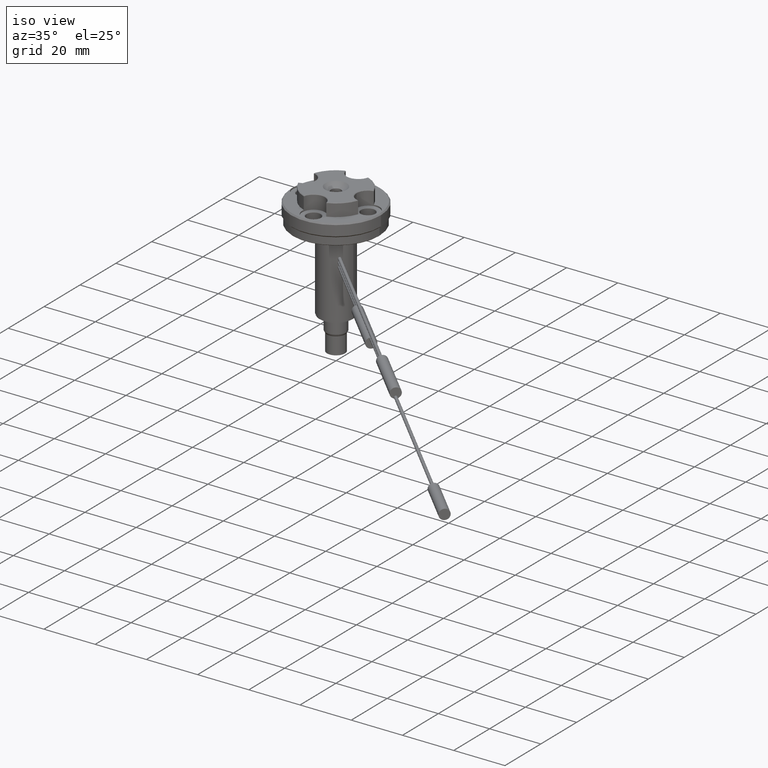
[diagram: clean part render]
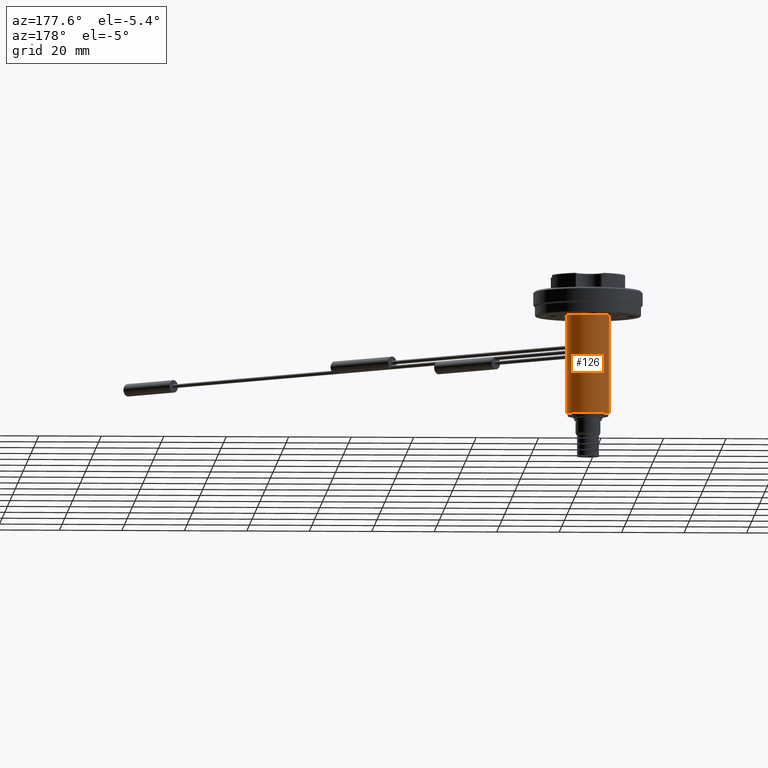
[diagram: tour spotlight — one face highlighted and labeled with its STEP entity id]
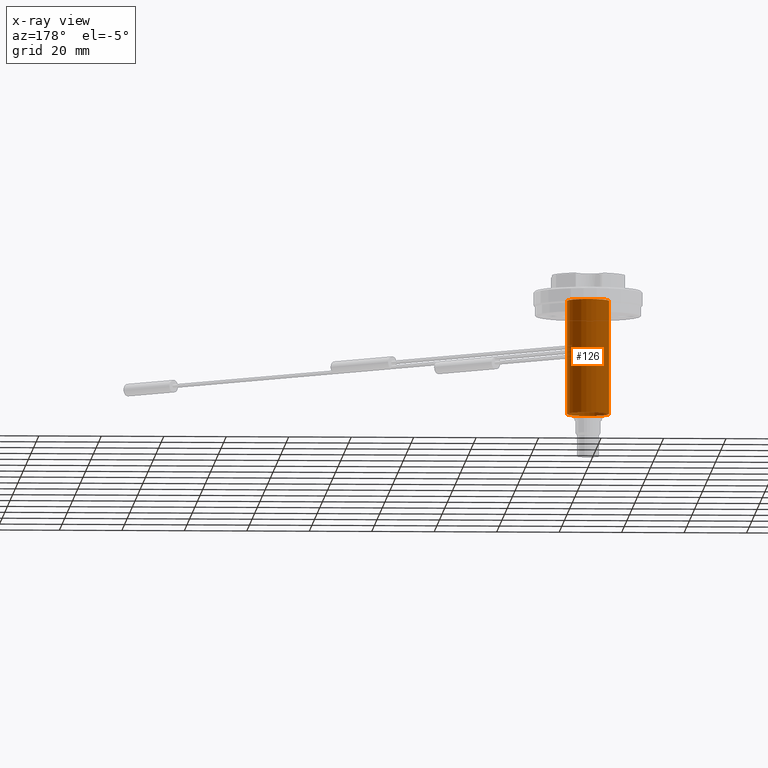
[diagram: x-ray of the same camera — body ghosted, this tour face saturated]
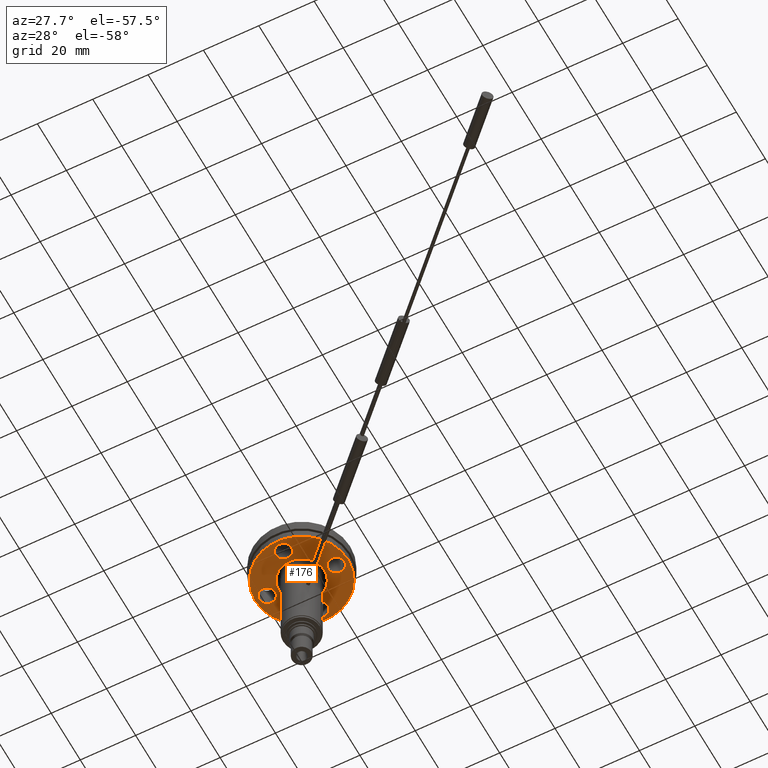
[diagram: tour spotlight — one face highlighted and labeled with its STEP entity id]
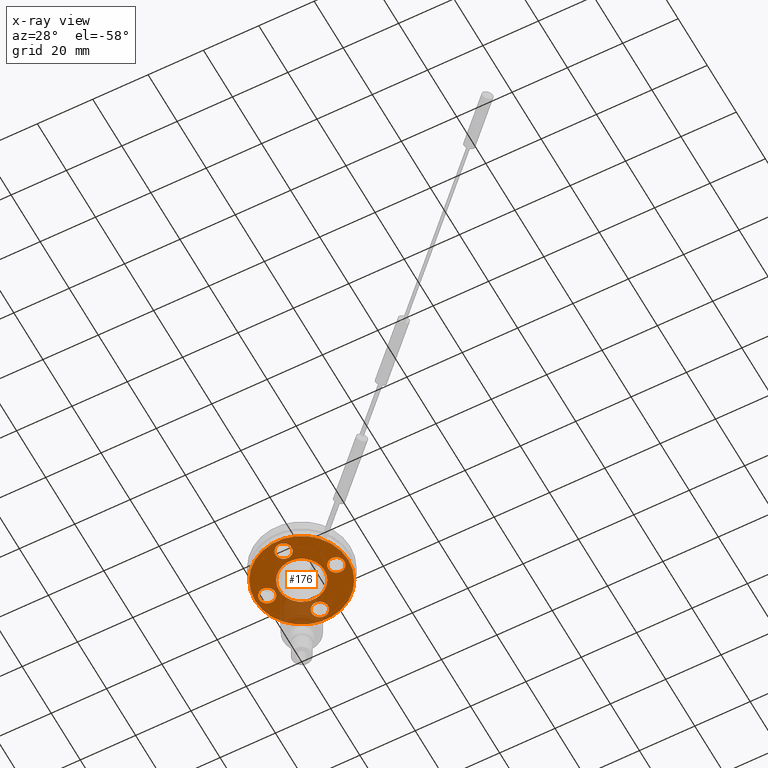
[diagram: x-ray of the same camera — body ghosted, this tour face saturated]
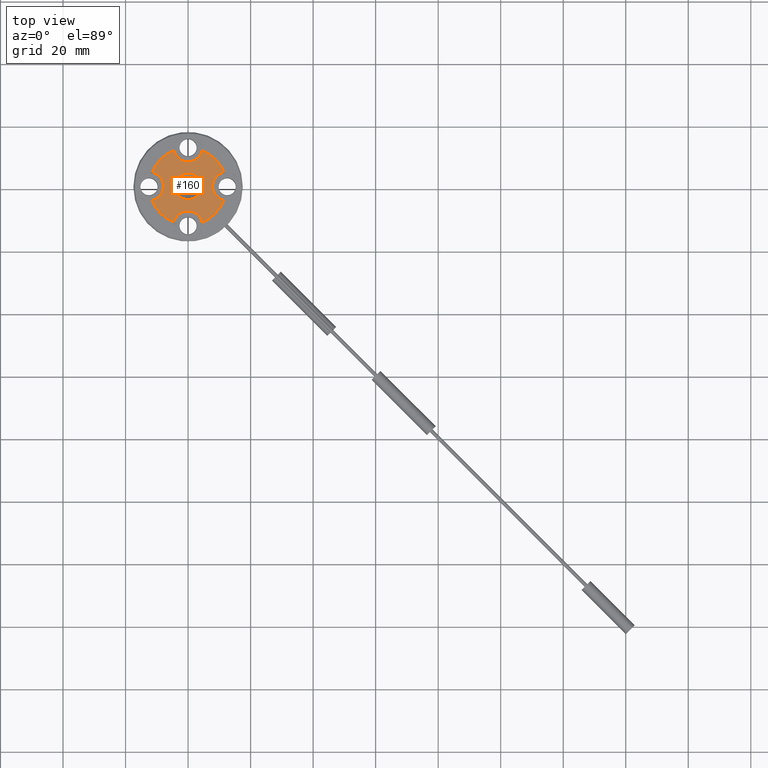
[diagram: tour spotlight — one face highlighted and labeled with its STEP entity id]
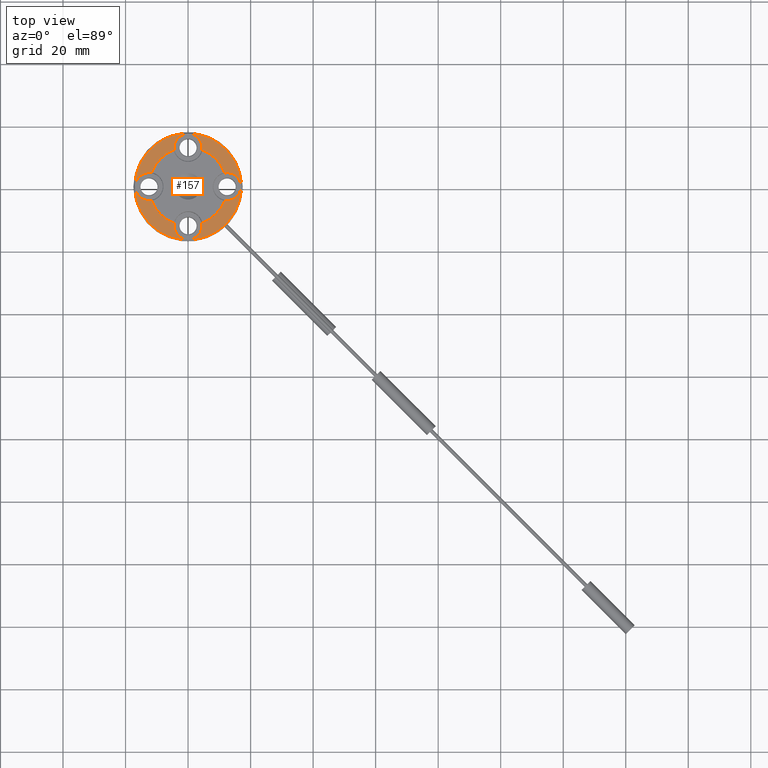
[diagram: tour spotlight — one face highlighted and labeled with its STEP entity id]
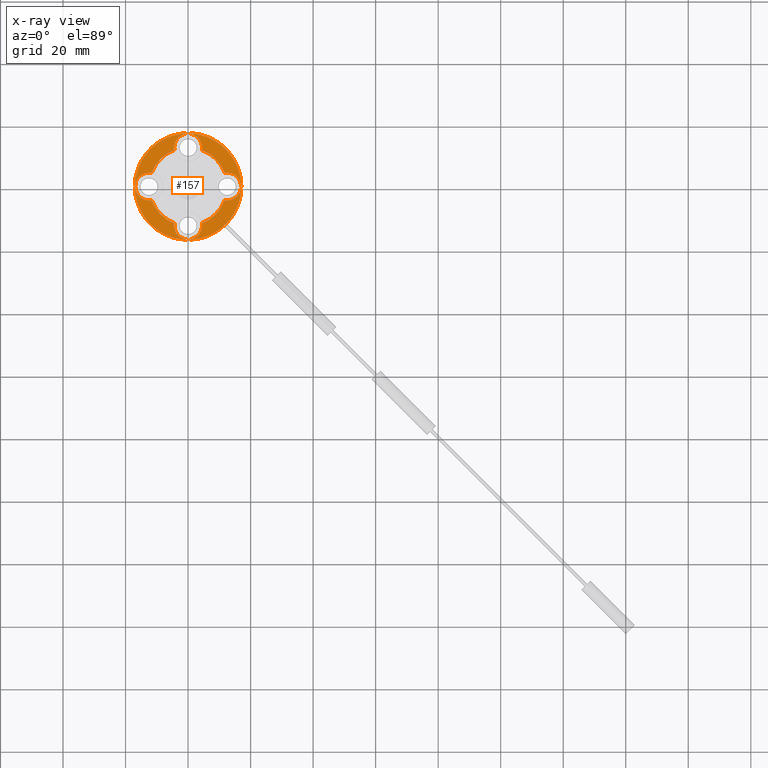
[diagram: x-ray of the same camera — body ghosted, this tour face saturated]
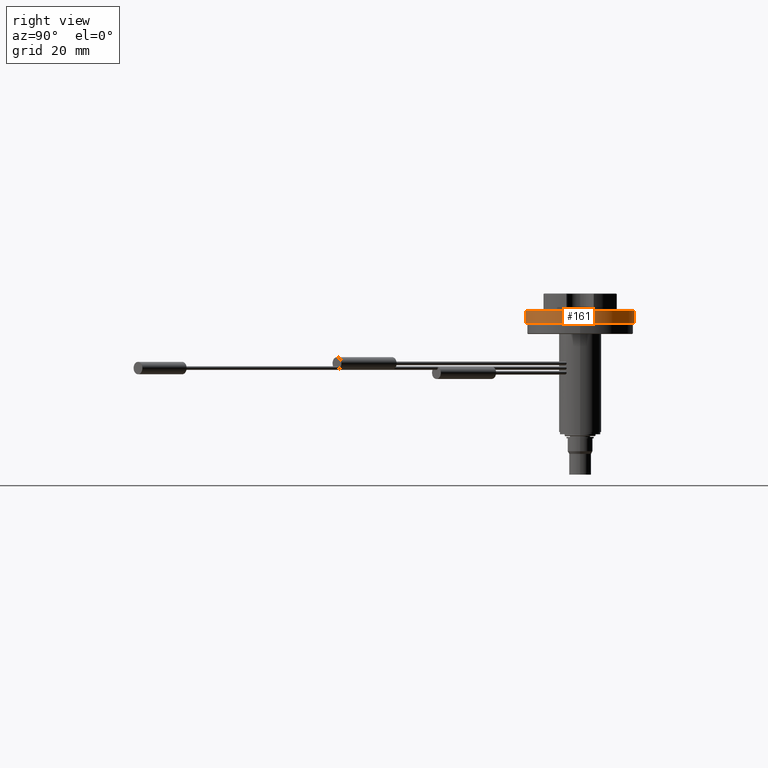
[diagram: tour spotlight — one face highlighted and labeled with its STEP entity id]
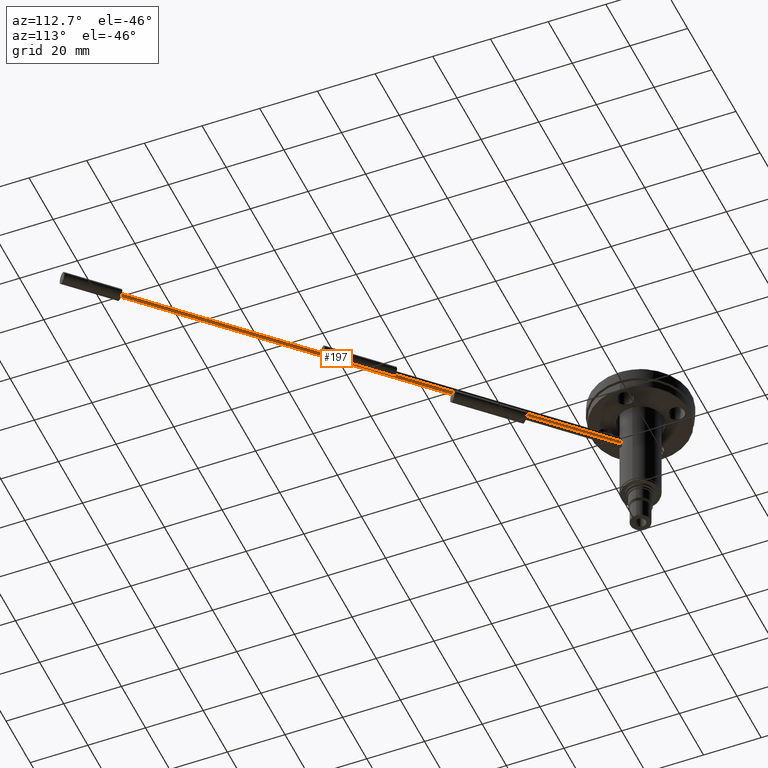
[diagram: tour spotlight — one face highlighted and labeled with its STEP entity id]
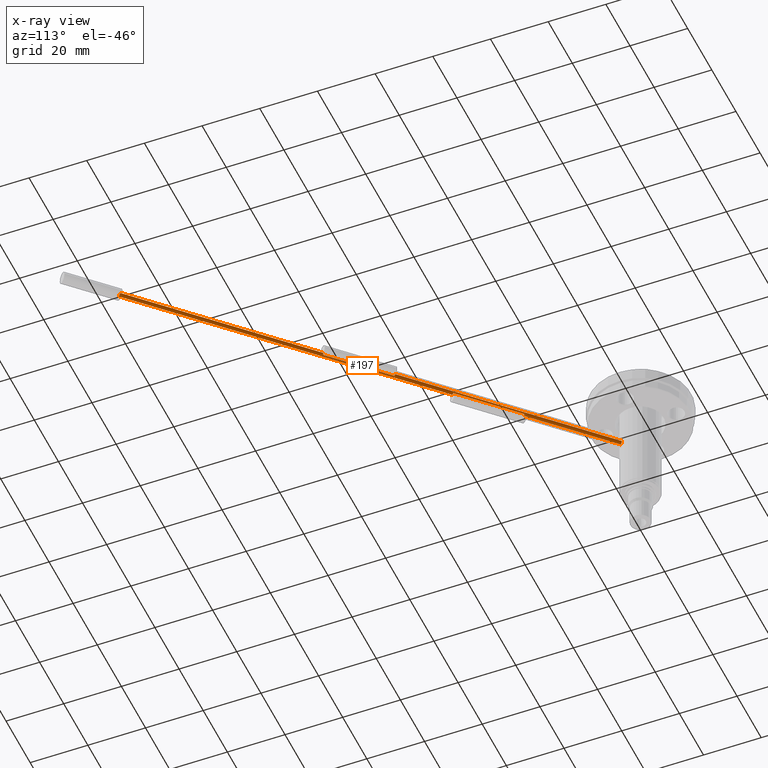
[diagram: x-ray of the same camera — body ghosted, this tour face saturated]
A machine part: a face-by-face anatomy tour. The part has 79 B-rep faces; the first image is the clean iso view, then the 6 largest visible faces are spotlighted one at a time (largest first), each with its STEP entity span.

Face 1 — auxiliary view, entity #126. An x-ray twin of the same camera follows (body ghosted, this face saturated) — the face is partly hidden behind the body. In plain terms, the highlighted cylindrical surface (bore or boss wall) has radius 6.75 mm, axis along (0, 0, 1).
Definition (entity closure, byte-faithful):
#126=ADVANCED_FACE('',(#325,#326,#327,#328,#329),#205,.T.);
#205=CYLINDRICAL_SURFACE('',#1048,6.75000000000002);
#235=CIRCLE('',#1046,6.75);
#236=CIRCLE('',#1047,6.74999999999999);
#325=FACE_BOUND('',#454,.T.);
#326=FACE_BOUND('',#455,.T.);
#327=FACE_BOUND('',#456,.T.);
#328=FACE_BOUND('',#457,.T.);
#329=FACE_BOUND('',#458,.T.);
#454=EDGE_LOOP('',(#602));
#455=EDGE_LOOP('',(#603));
#456=EDGE_LOOP('',(#604));
#457=EDGE_LOOP('',(#605));
#458=EDGE_LOOP('',(#606));
#602=ORIENTED_EDGE('',*,*,#921,.F.);
#603=ORIENTED_EDGE('',*,*,#922,.F.);
#604=ORIENTED_EDGE('',*,*,#923,.T.);
#605=ORIENTED_EDGE('',*,*,#924,.F.);
#606=ORIENTED_EDGE('',*,*,#925,.F.);
#828=VERTEX_POINT('',#1626);
#829=VERTEX_POINT('',#1628);
#830=VERTEX_POINT('',#1630);
#831=VERTEX_POINT('',#1689);
#832=VERTEX_POINT('',#1748);
#921=EDGE_CURVE('',#828,#828,#1034,.T.);
#922=EDGE_CURVE('',#829,#829,#235,.T.);
#923=EDGE_CURVE('',#830,#830,#236,.T.);
#924=EDGE_CURVE('',#831,#831,#1035,.T.);
#925=EDGE_CURVE('',#832,#832,#1036,.T.);
#1034=B_SPLINE_CURVE_WITH_KNOTS('',3,(#1568,#1569,#1570,#1571,#1572,#1573,
#1574,#1575,#1576,#1577,#1578,#1579,#1580,#1581,#1582,#1583,#1584,#1585,
#1586,#1587,#1588,#1589,#1590,#1591,#1592,#1593,#1594,#1595,#1596,#1597,
#1598,#1599,#1600,#1601,#1602,#1603,#1604,#1605,#1606,#1607,#1608,#1609,
#1610,#1611,#1612,#1613,#1614,#1615,#1616,#1617,#1618,#1619,#1620,#1621,
#1622,#1623,#1624,#1625),.UNSPECIFIED.,.T.,.F.,(1,3,3,3,3,3,3,3,3,3,3,3,
3,3,3,3,3,3,3,3,3,1),(-0.0346522403765883,0.,0.053559995994628,0.107110961370303,
0.160797288651027,0.21457666495937,0.268210527151096,0.321688295491679,
0.375241038550614,0.428983637632128,0.482736153422249,0.536301058189785,
0.58977423560765,0.643394022418884,0.697170322997007,0.750869254379598,
0.804378492957119,0.85788071695721,0.911568672134155,0.965347759623412,
1.,1.05355999599463),.UNSPECIFIED.);
#1035=B_SPLINE_CURVE_WITH_KNOTS('',3,(#1631,#1632,#1633,#1634,#1635,#1636,
#1637,#1638,#1639,#1640,#1641,#1642,#1643,#1644,#1645,#1646,#1647,#1648,
#1649,#1650,#1651,#1652,#1653,#1654,#1655,#1656,#1657,#1658,#1659,#1660,
#1661,#1662,#1663,#1664,#1665,#1666,#1667,#1668,#1669,#1670,#1671,#1672,
#1673,#1674,#1675,#1676,#1677,#1678,#1679,#1680,#1681,#1682,#1683,#1684,
#1685,#1686,#1687,#1688),.UNSPECIFIED.,.T.,.F.,(1,3,3,3,3,3,3,3,3,3,3,3,
3,3,3,3,3,3,3,3,3,1),(-0.0346522403765865,0.,0.0535599959946282,0.107110961370302,
0.160797288651028,0.214576664959369,0.268210527151097,0.321688295491677,
0.375241038550613,0.428983637632127,0.482736153422249,0.536301058189786,
0.58977423560765,0.643394022418884,0.697170322997008,0.750869254379599,
0.804378492957119,0.857880716957211,0.911568672134155,0.965347759623413,
1.,1.05355999599463),.UNSPECIFIED.);
#1036=B_SPLINE_CURVE_WITH_KNOTS('',3,(#1690,#1691,#1692,#1693,#1694,#1695,
#1696,#1697,#1698,#1699,#1700,#1701,#1702,#1703,#1704,#1705,#1706,#1707,
#1708,#1709,#1710,#1711,#1712,#1713,#1714,#1715,#1716,#1717,#1718,#1719,
#1720,#1721,#1722,#1723,#1724,#1725,#1726,#1727,#1728,#1729,#1730,#1731,
#1732,#1733,#1734,#1735,#1736,#1737,#1738,#1739,#1740,#1741,#1742,#1743,
#1744,#1745,#1746,#1747),.UNSPECIFIED.,.T.,.F.,(1,3,3,3,3,3,3,3,3,3,3,3,
3,3,3,3,3,3,3,3,3,1),(-0.0346522403765865,0.,0.0535599959946287,0.107110961370303,
0.160797288651027,0.214576664959369,0.268210527151097,0.321688295491676,
0.375241038550615,0.428983637632129,0.482736153422251,0.536301058189787,
0.589774235607651,0.643394022418884,0.697170322997007,0.750869254379599,
0.80437849295712,0.857880716957211,0.911568672134157,0.965347759623413,
1.,1.05355999599463),.UNSPECIFIED.);
#1046=AXIS2_PLACEMENT_3D('',#1627,#1217,#1218);
#1047=AXIS2_PLACEMENT_3D('',#1629,#1219,#1220);
#1048=AXIS2_PLACEMENT_3D('',#1749,#1221,#1222);
#1217=DIRECTION('',(0.,0.,1.));
#1218=DIRECTION('',(-1.,0.,0.));
#1219=DIRECTION('',(0.,0.,1.));
#1220=DIRECTION('',(1.,0.,0.));
#1221=DIRECTION('',(0.,0.,1.));
#1222=DIRECTION('',(1.,0.,0.));
#1568=CARTESIAN_POINT('',(4.32981312881023,-5.17834126623409,-23.9));
#1569=CARTESIAN_POINT('',(4.32981312881023,-5.17834126623409,-23.9670064301583));
#1570=CARTESIAN_POINT('',(4.33872451259778,-5.17092471646894,-24.0349362918585));
#1571=CARTESIAN_POINT('',(4.35568364499968,-5.15659965332607,-24.0981584563002));
#1572=CARTESIAN_POINT('',(4.37264115143552,-5.14227596360645,-24.1613745592823));
#1573=CARTESIAN_POINT('',(4.39809667090229,-5.12064397715603,-24.2216259393455));
#1574=CARTESIAN_POINT('',(4.42965326392807,-5.09319859826531,-24.2739703125111));
#1575=CARTESIAN_POINT('',(4.46128832944363,-5.06568497033348,-24.326444851607));
#1576=CARTESIAN_POINT('',(4.49991046899271,-5.03155474915369,-24.3724206802881));
#1577=CARTESIAN_POINT('',(4.54200065520223,-4.99326847346934,-24.4081128596072));
#1578=CARTESIAN_POINT('',(4.58415942876995,-4.95491980902549,-24.4438632005195));
#1579=CARTESIAN_POINT('',(4.63095199477887,-4.91132248371357,-24.470281159596));
#1580=CARTESIAN_POINT('',(4.67824938845986,-4.86584860629421,-24.4851523448932));
#1581=CARTESIAN_POINT('',(4.72541987267493,-4.82049674543954,-24.4999836274803));
#1582=CARTESIAN_POINT('',(4.77439013846135,-4.77201657916405,-24.5037371452256));
#1583=CARTESIAN_POINT('',(4.82104559987273,-4.72440676952653,-24.496096022663));
#1584=CARTESIAN_POINT('',(4.86757052131183,-4.67693017008654,-24.4884762796324));
#1585=CARTESIAN_POINT('',(4.91307817740424,-4.62901641525088,-24.4693203699528));
#1586=CARTESIAN_POINT('',(4.95400222717408,-4.58479682572244,-24.4402255878515));
#1587=CARTESIAN_POINT('',(4.99498479268789,-4.54051400828293,-24.4110892042266));
#1588=CARTESIAN_POINT('',(5.03251155530978,-4.49873001989827,-24.3711891531049));
#1589=CARTESIAN_POINT('',(5.06383622556902,-4.46318974284258,-24.3238064433137));
#1590=CARTESIAN_POINT('',(5.09526882254384,-4.42752701452589,-24.2762604800803));
#1591=CARTESIAN_POINT('',(5.12133985036415,-4.39718394516673,-24.2198657796859));
#1592=CARTESIAN_POINT('',(5.14021989747713,-4.37500164635174,-24.1592691922931));
#1593=CARTESIAN_POINT('',(5.15910203567869,-4.35281689070222,-24.0986658934323));
#1594=CARTESIAN_POINT('',(5.17132424059313,-4.33819774053933,-24.0321784926327));
#1595=CARTESIAN_POINT('',(5.17604256702157,-4.33256082985352,-23.9653397239969));
#1596=CARTESIAN_POINT('',(5.18074475081458,-4.32694320452144,-23.8987296283644));
#1597=CARTESIAN_POINT('',(5.17812749912991,-4.33009534818066,-23.8299315846175));
#1598=CARTESIAN_POINT('',(5.16837006174349,-4.34171059662824,-23.7646594503938));
#1599=CARTESIAN_POINT('',(5.15862832649703,-4.35330715325647,-23.6994923552441));
#1600=CARTESIAN_POINT('',(5.14149778708511,-4.37364637575262,-23.6360473592978));
#1601=CARTESIAN_POINT('',(5.11815294361675,-4.40079656945734,-23.5795317235257));
#1602=CARTESIAN_POINT('',(5.09474463607563,-4.42802057226133,-23.5228624472964));
#1603=CARTESIAN_POINT('',(5.06443075409758,-4.462824957076,-23.4715991423169));
#1604=CARTESIAN_POINT('',(5.02935668339148,-4.5020074801388,-23.4299453128471));
#1605=CARTESIAN_POINT('',(4.99418420988583,-4.54129993255641,-23.3881746205967));
#1606=CARTESIAN_POINT('',(4.95323385194061,-4.5860677350654,-23.3549156940318));
#1607=CARTESIAN_POINT('',(4.90959846721883,-4.6323150681579,-23.3329400752102));
#1608=CARTESIAN_POINT('',(4.86602703661762,-4.67849461893257,-23.3109966649135));
#1609=CARTESIAN_POINT('',(4.81856059604698,-4.72741855801884,-23.2997008267163));
#1610=CARTESIAN_POINT('',(4.7710417195123,-4.77489904717088,-23.3000061996056));
#1611=CARTESIAN_POINT('',(4.72368590560334,-4.8222166054248,-23.3003105245976));
#1612=CARTESIAN_POINT('',(4.67497339107114,-4.86940500316652,-23.3121426392884));
#1613=CARTESIAN_POINT('',(4.62905079841894,-4.91267632820007,-23.334510584159));
#1614=CARTESIAN_POINT('',(4.58313096080438,-4.95594505725367,-23.3568771871078));
#1615=CARTESIAN_POINT('',(4.53874810439044,-4.99649797666824,-23.390387249672));
#1616=CARTESIAN_POINT('',(4.49982829795765,-5.03130651907632,-23.4322763099454));
#1617=CARTESIAN_POINT('',(4.46077603372946,-5.06623352720175,-23.4743079334298));
#1618=CARTESIAN_POINT('',(4.42616337388462,-5.09635585967287,-23.5259339047537));
#1619=CARTESIAN_POINT('',(4.39918492126838,-5.11953826321137,-23.582910846329));
#1620=CARTESIAN_POINT('',(4.37216346195096,-5.14275762211997,-23.6399786155858));
#1621=CARTESIAN_POINT('',(4.35207130471318,-5.15966961179894,-23.7039977150746));
#1622=CARTESIAN_POINT('',(4.34083881049649,-5.16910228388719,-23.7696550372151));
#1623=CARTESIAN_POINT('',(4.33354055091511,-5.17523111761886,-23.8123155693423));
#1624=CARTESIAN_POINT('',(4.32981312881023,-5.17834126623409,-23.8562878941573));
#1625=CARTESIAN_POINT('',(4.32981312881023,-5.17834126623409,-23.9));
#1626=CARTESIAN_POINT('',(4.32981312881023,-5.17834126623409,-23.9));
#1627=CARTESIAN_POINT('',(0.,0.,-8.));
#1628=CARTESIAN_POINT('',(-6.75,0.,-8.));
#1629=CARTESIAN_POINT('',(0.,0.,-44.36));
#1630=CARTESIAN_POINT('',(6.74999999999999,0.,-44.36));
#1631=CARTESIAN_POINT('',(4.32981312881023,-5.17834126623408,-22.4));
#1632=CARTESIAN_POINT('',(4.32981312881023,-5.17834126623408,-22.4670064301583));
#1633=CARTESIAN_POINT('',(4.33872451259778,-5.17092471646893,-22.5349362918585));
#1634=CARTESIAN_POINT('',(4.35568364499968,-5.15659965332607,-22.5981584563002));
#1635=CARTESIAN_POINT('',(4.37264115143552,-5.14227596360645,-22.6613745592823));
#1636=CARTESIAN_POINT('',(4.39809667090229,-5.12064397715603,-22.7216259393455));
#1637=CARTESIAN_POINT('',(4.42965326392807,-5.09319859826531,-22.7739703125111));
#1638=CARTESIAN_POINT('',(4.46128832944364,-5.06568497033347,-22.826444851607));
#1639=CARTESIAN_POINT('',(4.49991046899272,-5.03155474915368,-22.8724206802881));
#1640=CARTESIAN_POINT('',(4.54200065520224,-4.99326847346933,-22.9081128596072));
#1641=CARTESIAN_POINT('',(4.58415942876996,-4.95491980902548,-22.9438632005195));
#1642=CARTESIAN_POINT('',(4.63095199477888,-4.91132248371356,-22.970281159596));
#1643=CARTESIAN_POINT('',(4.67824938845986,-4.8658486062942,-22.9851523448932));
#1644=CARTESIAN_POINT('',(4.72541987267494,-4.82049674543953,-22.9999836274803));
#1645=CARTESIAN_POINT('',(4.77439013846135,-4.77201657916404,-23.0037371452256));
#1646=CARTESIAN_POINT('',(4.82104559987274,-4.72440676952652,-22.996096022663));
#1647=CARTESIAN_POINT('',(4.86757052131183,-4.67693017008653,-22.9884762796324));
#1648=CARTESIAN_POINT('',(4.91307817740425,-4.62901641525088,-22.9693203699528));
#1649=CARTESIAN_POINT('',(4.95400222717408,-4.58479682572243,-22.9402255878515));
#1650=CARTESIAN_POINT('',(4.99498479268789,-4.54051400828292,-22.9110892042266));
#1651=CARTESIAN_POINT('',(5.03251155530978,-4.49873001989826,-22.8711891531049));
#1652=CARTESIAN_POINT('',(5.06383622556902,-4.46318974284257,-22.8238064433137));
#1653=CARTESIAN_POINT('',(5.09526882254385,-4.42752701452589,-22.7762604800803));
#1654=CARTESIAN_POINT('',(5.12133985036416,-4.39718394516673,-22.7198657796859));
#1655=CARTESIAN_POINT('',(5.14021989747714,-4.37500164635174,-22.6592691922931));
#1656=CARTESIAN_POINT('',(5.1591020356787,-4.35281689070221,-22.5986658934322));
#1657=CARTESIAN_POINT('',(5.17132424059313,-4.33819774053933,-22.5321784926327));
#1658=CARTESIAN_POINT('',(5.17604256702157,-4.33256082985353,-22.4653397239969));
#1659=CARTESIAN_POINT('',(5.18074475081457,-4.32694320452145,-22.3987296283644));
#1660=CARTESIAN_POINT('',(5.1781274991299,-4.33009534818067,-22.3299315846175));
#1661=CARTESIAN_POINT('',(5.16837006174348,-4.34171059662824,-22.2646594503938));
#1662=CARTESIAN_POINT('',(5.15862832649703,-4.35330715325648,-22.1994923552441));
#1663=CARTESIAN_POINT('',(5.1414977870851,-4.37364637575262,-22.1360473592978));
#1664=CARTESIAN_POINT('',(5.11815294361675,-4.40079656945734,-22.0795317235257));
#1665=CARTESIAN_POINT('',(5.09474463607563,-4.42802057226133,-22.0228624472964));
#1666=CARTESIAN_POINT('',(5.06443075409757,-4.462824957076,-21.9715991423169));
#1667=CARTESIAN_POINT('',(5.02935668339148,-4.50200748013881,-21.9299453128471));
#1668=CARTESIAN_POINT('',(4.99418420988583,-4.54129993255641,-21.8881746205967));
#1669=CARTESIAN_POINT('',(4.9532338519406,-4.58606773506541,-21.8549156940318));
#1670=CARTESIAN_POINT('',(4.90959846721883,-4.63231506815791,-21.8329400752102));
#1671=CARTESIAN_POINT('',(4.86602703661761,-4.67849461893258,-21.8109966649135));
#1672=CARTESIAN_POINT('',(4.81856059604697,-4.72741855801885,-21.7997008267163));
#1673=CARTESIAN_POINT('',(4.7710417195123,-4.77489904717089,-21.8000061996056));
#1674=CARTESIAN_POINT('',(4.72368590560334,-4.82221660542481,-21.8003105245976));
#1675=CARTESIAN_POINT('',(4.67497339107114,-4.86940500316652,-21.8121426392884));
#1676=CARTESIAN_POINT('',(4.62905079841893,-4.91267632820007,-21.834510584159));
#1677=CARTESIAN_POINT('',(4.58313096080438,-4.95594505725367,-21.8568771871078));
#1678=CARTESIAN_POINT('',(4.53874810439044,-4.99649797666824,-21.8903872496721));
#1679=CARTESIAN_POINT('',(4.49982829795764,-5.03130651907632,-21.9322763099454));
#1680=CARTESIAN_POINT('',(4.46077603372946,-5.06623352720175,-21.9743079334298));
#1681=CARTESIAN_POINT('',(4.42616337388461,-5.09635585967288,-22.0259339047537));
#1682=CARTESIAN_POINT('',(4.39918492126837,-5.11953826321137,-22.082910846329));
#1683=CARTESIAN_POINT('',(4.37216346195095,-5.14275762211998,-22.1399786155858));
#1684=CARTESIAN_POINT('',(4.35207130471318,-5.15966961179894,-22.2039977150746));
#1685=CARTESIAN_POINT('',(4.34083881049649,-5.16910228388719,-22.2696550372151));
#1686=CARTESIAN_POINT('',(4.33354055091511,-5.17523111761886,-22.3123155693423));
#1687=CARTESIAN_POINT('',(4.32981312881023,-5.17834126623408,-22.3562878941573));
#1688=CARTESIAN_POINT('',(4.32981312881023,-5.17834126623408,-22.4));
#1689=CARTESIAN_POINT('',(4.32981312881023,-5.17834126623408,-22.4));
#1690=CARTESIAN_POINT('',(4.32981312881023,-5.17834126623409,-25.4));
#1691=CARTESIAN_POINT('',(4.32981312881023,-5.17834126623409,-25.4670064301583));
#1692=CARTESIAN_POINT('',(4.33872451259778,-5.17092471646894,-25.5349362918585));
#1693=CARTESIAN_POINT('',(4.35568364499968,-5.15659965332607,-25.5981584563002));
#1694=CARTESIAN_POINT('',(4.37264115143552,-5.14227596360645,-25.6613745592823));
#1695=CARTESIAN_POINT('',(4.3980966709023,-5.12064397715603,-25.7216259393455));
#1696=CARTESIAN_POINT('',(4.42965326392807,-5.09319859826531,-25.7739703125111));
#1697=CARTESIAN_POINT('',(4.46128832944364,-5.06568497033347,-25.826444851607));
#1698=CARTESIAN_POINT('',(4.49991046899271,-5.03155474915369,-25.8724206802881));
#1699=CARTESIAN_POINT('',(4.54200065520223,-4.99326847346934,-25.9081128596072));
#1700=CARTESIAN_POINT('',(4.58415942876995,-4.95491980902549,-25.9438632005195));
#1701=CARTESIAN_POINT('',(4.63095199477887,-4.91132248371357,-25.970281159596));
#1702=CARTESIAN_POINT('',(4.67824938845986,-4.86584860629421,-25.9851523448932));
#1703=CARTESIAN_POINT('',(4.72541987267494,-4.82049674543954,-25.9999836274803));
#1704=CARTESIAN_POINT('',(4.77439013846135,-4.77201657916405,-26.0037371452256));
#1705=CARTESIAN_POINT('',(4.82104559987274,-4.72440676952652,-25.996096022663));
#1706=CARTESIAN_POINT('',(4.86757052131183,-4.67693017008654,-25.9884762796324));
#1707=CARTESIAN_POINT('',(4.91307817740424,-4.62901641525088,-25.9693203699528));
#1708=CARTESIAN_POINT('',(4.95400222717408,-4.58479682572244,-25.9402255878515));
#1709=CARTESIAN_POINT('',(4.99498479268789,-4.54051400828292,-25.9110892042266));
#1710=CARTESIAN_POINT('',(5.03251155530978,-4.49873001989827,-25.8711891531049));
#1711=CARTESIAN_POINT('',(5.06383622556902,-4.46318974284257,-25.8238064433137));
#1712=CARTESIAN_POINT('',(5.09526882254384,-4.42752701452589,-25.7762604800803));
#1713=CARTESIAN_POINT('',(5.12133985036416,-4.39718394516673,-25.7198657796859));
#1714=CARTESIAN_POINT('',(5.14021989747714,-4.37500164635174,-25.6592691922931));
#1715=CARTESIAN_POINT('',(5.1591020356787,-4.35281689070222,-25.5986658934322));
#1716=CARTESIAN_POINT('',(5.17132424059313,-4.33819774053933,-25.5321784926327));
#1717=CARTESIAN_POINT('',(5.17604256702157,-4.33256082985353,-25.4653397239969));
#1718=CARTESIAN_POINT('',(5.18074475081457,-4.32694320452145,-25.3987296283644));
#1719=CARTESIAN_POINT('',(5.1781274991299,-4.33009534818067,-25.3299315846175));
#1720=CARTESIAN_POINT('',(5.16837006174348,-4.34171059662825,-25.2646594503938));
#1721=CARTESIAN_POINT('',(5.15862832649702,-4.35330715325648,-25.1994923552441));
#1722=CARTESIAN_POINT('',(5.1414977870851,-4.37364637575262,-25.1360473592978));
#1723=CARTESIAN_POINT('',(5.11815294361675,-4.40079656945734,-25.0795317235257));
#1724=CARTESIAN_POINT('',(5.09474463607563,-4.42802057226133,-25.0228624472964));
#1725=CARTESIAN_POINT('',(5.06443075409758,-4.462824957076,-24.9715991423169));
#1726=CARTESIAN_POINT('',(5.02935668339148,-4.5020074801388,-24.9299453128471));
#1727=CARTESIAN_POINT('',(4.99418420988583,-4.54129993255641,-24.8881746205967));
#1728=CARTESIAN_POINT('',(4.9532338519406,-4.5860677350654,-24.8549156940318));
#1729=CARTESIAN_POINT('',(4.90959846721883,-4.63231506815791,-24.8329400752102));
#1730=CARTESIAN_POINT('',(4.86602703661762,-4.67849461893257,-24.8109966649135));
#1731=CARTESIAN_POINT('',(4.81856059604697,-4.72741855801885,-24.7997008267163));
#1732=CARTESIAN_POINT('',(4.7710417195123,-4.77489904717089,-24.8000061996056));
#1733=CARTESIAN_POINT('',(4.72368590560334,-4.82221660542481,-24.8003105245976));
#1734=CARTESIAN_POINT('',(4.67497339107114,-4.86940500316652,-24.8121426392884));
#1735=CARTESIAN_POINT('',(4.62905079841893,-4.91267632820007,-24.834510584159));
#1736=CARTESIAN_POINT('',(4.58313096080438,-4.95594505725367,-24.8568771871078));
#1737=CARTESIAN_POINT('',(4.53874810439043,-4.99649797666825,-24.8903872496721));
#1738=CARTESIAN_POINT('',(4.49982829795764,-5.03130651907632,-24.9322763099454));
#1739=CARTESIAN_POINT('',(4.46077603372946,-5.06623352720175,-24.9743079334298));
#1740=CARTESIAN_POINT('',(4.42616337388461,-5.09635585967288,-25.0259339047537));
#1741=CARTESIAN_POINT('',(4.39918492126837,-5.11953826321137,-25.082910846329));
#1742=CARTESIAN_POINT('',(4.37216346195095,-5.14275762211998,-25.1399786155858));
#1743=CARTESIAN_POINT('',(4.35207130471318,-5.15966961179894,-25.2039977150746));
#1744=CARTESIAN_POINT('',(4.34083881049649,-5.16910228388719,-25.2696550372151));
#1745=CARTESIAN_POINT('',(4.33354055091511,-5.17523111761886,-25.3123155693423));
#1746=CARTESIAN_POINT('',(4.32981312881023,-5.17834126623409,-25.3562878941573));
#1747=CARTESIAN_POINT('',(4.32981312881023,-5.17834126623409,-25.4));
#1748=CARTESIAN_POINT('',(4.32981312881023,-5.17834126623409,-25.4));
#1749=CARTESIAN_POINT('',(0.,0.,0.));

Face 2 — auxiliary view, entity #176. An x-ray twin of the same camera follows (body ghosted, this face saturated) — the face is partly hidden behind the body. In plain terms, the highlighted planar face has unit normal (0, 0, -1).
Definition (entity closure, byte-faithful):
#76=PLANE('',#1175);
#176=ADVANCED_FACE('',(#412,#413,#414,#415,#416,#417),#76,.T.);
#308=CIRCLE('',#1169,2.95);
#309=CIRCLE('',#1170,2.95);
#310=CIRCLE('',#1171,2.95);
#311=CIRCLE('',#1172,2.95);
#312=CIRCLE('',#1173,16.8);
#313=CIRCLE('',#1174,8.2);
#412=FACE_BOUND('',#549,.T.);
#413=FACE_BOUND('',#550,.T.);
#414=FACE_BOUND('',#551,.T.);
#415=FACE_BOUND('',#552,.T.);
#416=FACE_BOUND('',#553,.T.);
#417=FACE_BOUND('',#554,.T.);
#549=EDGE_LOOP('',(#741));
#550=EDGE_LOOP('',(#742));
#551=EDGE_LOOP('',(#743));
#552=EDGE_LOOP('',(#744));
#553=EDGE_LOOP('',(#745));
#554=EDGE_LOOP('',(#746));
#741=ORIENTED_EDGE('',*,*,#1009,.T.);
#742=ORIENTED_EDGE('',*,*,#1010,.T.);
#743=ORIENTED_EDGE('',*,*,#1011,.T.);
#744=ORIENTED_EDGE('',*,*,#1012,.T.);
#745=ORIENTED_EDGE('',*,*,#1013,.T.);
#746=ORIENTED_EDGE('',*,*,#1014,.T.);
#906=VERTEX_POINT('',#1962);
#907=VERTEX_POINT('',#1964);
#908=VERTEX_POINT('',#1966);
#909=VERTEX_POINT('',#1968);
#910=VERTEX_POINT('',#1970);
#911=VERTEX_POINT('',#1972);
#1009=EDGE_CURVE('',#906,#906,#308,.T.);
#1010=EDGE_CURVE('',#907,#907,#309,.T.);
#1011=EDGE_CURVE('',#908,#908,#310,.T.);
#1012=EDGE_CURVE('',#909,#909,#311,.T.);
#1013=EDGE_CURVE('',#910,#910,#312,.T.);
#1014=EDGE_CURVE('',#911,#911,#313,.T.);
#1169=AXIS2_PLACEMENT_3D('',#1961,#1473,#1474);
#1170=AXIS2_PLACEMENT_3D('',#1963,#1475,#1476);
#1171=AXIS2_PLACEMENT_3D('',#1965,#1477,#1478);
#1172=AXIS2_PLACEMENT_3D('',#1967,#1479,#1480);
#1173=AXIS2_PLACEMENT_3D('',#1969,#1481,#1482);
#1174=AXIS2_PLACEMENT_3D('',#1971,#1483,#1484);
#1175=AXIS2_PLACEMENT_3D('',#1973,#1485,#1486);
#1473=DIRECTION('',(0.,0.,1.));
#1474=DIRECTION('',(-1.,0.,0.));
#1475=DIRECTION('',(0.,0.,1.));
#1476=DIRECTION('',(-1.,0.,0.));
#1477=DIRECTION('',(0.,0.,1.));
#1478=DIRECTION('',(-1.,0.,0.));
#1479=DIRECTION('',(0.,0.,1.));
#1480=DIRECTION('',(-1.,0.,0.));
#1481=DIRECTION('',(0.,0.,-1.));
#1482=DIRECTION('',(-1.,0.,0.));
#1483=DIRECTION('',(0.,0.,1.));
#1484=DIRECTION('',(-1.,0.,0.));
#1485=DIRECTION('',(0.,0.,-1.));
#1486=DIRECTION('',(-1.,0.,0.));
#1961=CARTESIAN_POINT('',(0.,12.5,-13.));
#1962=CARTESIAN_POINT('',(-2.95,12.5,-13.));
#1963=CARTESIAN_POINT('',(12.5,0.,-13.));
#1964=CARTESIAN_POINT('',(9.55,0.,-13.));
#1965=CARTESIAN_POINT('',(0.,-12.5,-13.));
#1966=CARTESIAN_POINT('',(-2.95,-12.5,-13.));
#1967=CARTESIAN_POINT('',(-12.5,0.,-13.));
#1968=CARTESIAN_POINT('',(-15.45,0.,-13.));
#1969=CARTESIAN_POINT('',(0.,0.,-13.));
#1970=CARTESIAN_POINT('',(-16.8,0.,-13.));
#1971=CARTESIAN_POINT('',(0.,0.,-13.));
#1972=CARTESIAN_POINT('',(-8.2,0.,-13.));
#1973=CARTESIAN_POINT('',(-17.,0.,-13.));

Face 3 — top view, entity #160. In plain terms, the highlighted planar face has unit normal (0, 0, 1).
Definition (entity closure, byte-faithful):
#71=PLANE('',#1130);
#160=ADVANCED_FACE('',(#380,#381),#71,.T.);
#262=CIRCLE('',#1099,4.2426406871193);
#277=CIRCLE('',#1121,12.3);
#278=CIRCLE('',#1123,12.3);
#279=CIRCLE('',#1124,4.65);
#280=CIRCLE('',#1125,4.65);
#281=CIRCLE('',#1126,12.3);
#282=CIRCLE('',#1127,4.65);
#283=CIRCLE('',#1128,12.3);
#284=CIRCLE('',#1129,4.65);
#380=FACE_BOUND('',#517,.T.);
#381=FACE_BOUND('',#518,.T.);
#517=EDGE_LOOP('',(#690));
#518=EDGE_LOOP('',(#691,#692,#693,#694,#695,#696,#697,#698));
#690=ORIENTED_EDGE('',*,*,#953,.T.);
#691=ORIENTED_EDGE('',*,*,#979,.T.);
#692=ORIENTED_EDGE('',*,*,#980,.T.);
#693=ORIENTED_EDGE('',*,*,#976,.T.);
#694=ORIENTED_EDGE('',*,*,#981,.T.);
#695=ORIENTED_EDGE('',*,*,#982,.T.);
#696=ORIENTED_EDGE('',*,*,#983,.T.);
#697=ORIENTED_EDGE('',*,*,#984,.T.);
#698=ORIENTED_EDGE('',*,*,#985,.T.);
#860=VERTEX_POINT('',#1830);
#879=VERTEX_POINT('',#1879);
#880=VERTEX_POINT('',#1880);
#881=VERTEX_POINT('',#1891);
#882=VERTEX_POINT('',#1892);
#883=VERTEX_POINT('',#1895);
#884=VERTEX_POINT('',#1897);
#885=VERTEX_POINT('',#1899);
#886=VERTEX_POINT('',#1901);
#953=EDGE_CURVE('',#860,#860,#262,.T.);
#976=EDGE_CURVE('',#879,#880,#277,.T.);
#979=EDGE_CURVE('',#881,#882,#278,.T.);
#980=EDGE_CURVE('',#882,#879,#279,.T.);
#981=EDGE_CURVE('',#880,#883,#280,.T.);
#982=EDGE_CURVE('',#883,#884,#281,.T.);
#983=EDGE_CURVE('',#884,#885,#282,.T.);
#984=EDGE_CURVE('',#885,#886,#283,.T.);
#985=EDGE_CURVE('',#886,#881,#284,.T.);
#1099=AXIS2_PLACEMENT_3D('',#1829,#1325,#1326);
#1121=AXIS2_PLACEMENT_3D('',#1878,#1377,#1378);
#1123=AXIS2_PLACEMENT_3D('',#1890,#1381,#1382);
#1124=AXIS2_PLACEMENT_3D('',#1893,#1383,#1384);
#1125=AXIS2_PLACEMENT_3D('',#1894,#1385,#1386);
#1126=AXIS2_PLACEMENT_3D('',#1896,#1387,#1388);
#1127=AXIS2_PLACEMENT_3D('',#1898,#1389,#1390);
#1128=AXIS2_PLACEMENT_3D('',#1900,#1391,#1392);
#1129=AXIS2_PLACEMENT_3D('',#1902,#1393,#1394);
#1130=AXIS2_PLACEMENT_3D('',#1903,#1395,#1396);
#1325=DIRECTION('',(0.,0.,-1.));
#1326=DIRECTION('',(1.,0.,0.));
#1377=DIRECTION('',(0.,0.,1.));
#1378=DIRECTION('',(1.,0.,0.));
#1381=DIRECTION('',(0.,0.,1.));
#1382=DIRECTION('',(1.,0.,0.));
#1383=DIRECTION('',(0.,0.,-1.));
#1384=DIRECTION('',(1.,0.,0.));
#1385=DIRECTION('',(0.,0.,-1.));
#1386=DIRECTION('',(1.,0.,0.));
#1387=DIRECTION('',(0.,0.,1.));
#1388=DIRECTION('',(1.,0.,0.));
#1389=DIRECTION('',(0.,0.,-1.));
#1390=DIRECTION('',(1.,0.,0.));
#1391=DIRECTION('',(0.,0.,1.));
#1392=DIRECTION('',(1.,0.,0.));
#1393=DIRECTION('',(0.,0.,-1.));
#1394=DIRECTION('',(1.,0.,0.));
#1395=DIRECTION('',(0.,0.,1.));
#1396=DIRECTION('',(1.,0.,0.));
#1829=CARTESIAN_POINT('',(0.,0.,2.08166817117217E-14));
#1830=CARTESIAN_POINT('',(4.2426406871193,0.,2.08166817117217E-14));
#1878=CARTESIAN_POINT('',(0.,0.,2.08166817117217E-14));
#1879=CARTESIAN_POINT('',(-11.4367,-4.52679722430771,2.08166817117217E-14));
#1880=CARTESIAN_POINT('',(-4.52679722430771,-11.4367,2.08166817117217E-14));
#1890=CARTESIAN_POINT('',(0.,0.,2.08166817117217E-14));
#1891=CARTESIAN_POINT('',(-4.52679722430771,11.4367,2.08166817117217E-14));
#1892=CARTESIAN_POINT('',(-11.4367,4.52679722430771,2.08166817117217E-14));
#1893=CARTESIAN_POINT('',(-12.5,0.,2.08166817117217E-14));
#1894=CARTESIAN_POINT('',(0.,-12.5,2.08166817117217E-14));
#1895=CARTESIAN_POINT('',(4.52679722430771,-11.4367,2.08166817117217E-14));
#1896=CARTESIAN_POINT('',(0.,0.,2.08166817117217E-14));
#1897=CARTESIAN_POINT('',(11.4367,-4.52679722430771,2.08166817117217E-14));
#1898=CARTESIAN_POINT('',(12.5,0.,2.08166817117217E-14));
#1899=CARTESIAN_POINT('',(11.4367,4.52679722430771,2.08166817117217E-14));
#1900=CARTESIAN_POINT('',(0.,0.,2.08166817117217E-14));
#1901=CARTESIAN_POINT('',(4.52679722430771,11.4367,2.08166817117217E-14));
#1902=CARTESIAN_POINT('',(0.,12.5,2.08166817117217E-14));
#1903=CARTESIAN_POINT('',(0.,0.,2.08166817117217E-14));

Face 4 — top view, entity #157. An x-ray twin of the same camera follows (body ghosted, this face saturated) — the face is partly hidden behind the body. In plain terms, the highlighted planar face has unit normal (0, 0, 1).
Definition (entity closure, byte-faithful):
#70=PLANE('',#1118);
#157=ADVANCED_FACE('',(#378,#379),#70,.T.);
#264=CIRCLE('',#1102,17.);
#266=CIRCLE('',#1105,12.5);
#268=CIRCLE('',#1108,12.5);
#270=CIRCLE('',#1111,12.5);
#271=CIRCLE('',#1113,4.45);
#272=CIRCLE('',#1114,4.45);
#273=CIRCLE('',#1115,4.45);
#274=CIRCLE('',#1116,4.45);
#275=CIRCLE('',#1117,12.5);
#378=FACE_BOUND('',#513,.T.);
#379=FACE_BOUND('',#514,.T.);
#513=EDGE_LOOP('',(#673));
#514=EDGE_LOOP('',(#674,#675,#676,#677,#678,#679,#680,#681));
#673=ORIENTED_EDGE('',*,*,#955,.T.);
#674=ORIENTED_EDGE('',*,*,#968,.F.);
#675=ORIENTED_EDGE('',*,*,#959,.F.);
#676=ORIENTED_EDGE('',*,*,#969,.F.);
#677=ORIENTED_EDGE('',*,*,#963,.F.);
#678=ORIENTED_EDGE('',*,*,#970,.F.);
#679=ORIENTED_EDGE('',*,*,#967,.F.);
#680=ORIENTED_EDGE('',*,*,#971,.F.);
#681=ORIENTED_EDGE('',*,*,#972,.F.);
#862=VERTEX_POINT('',#1835);
#864=VERTEX_POINT('',#1839);
#866=VERTEX_POINT('',#1843);
#868=VERTEX_POINT('',#1848);
#870=VERTEX_POINT('',#1852);
#872=VERTEX_POINT('',#1857);
#874=VERTEX_POINT('',#1861);
#875=VERTEX_POINT('',#1865);
#876=VERTEX_POINT('',#1869);
#955=EDGE_CURVE('',#862,#862,#264,.T.);
#959=EDGE_CURVE('',#866,#864,#266,.T.);
#963=EDGE_CURVE('',#870,#868,#268,.T.);
#967=EDGE_CURVE('',#874,#872,#270,.T.);
#968=EDGE_CURVE('',#864,#875,#271,.T.);
#969=EDGE_CURVE('',#868,#866,#272,.T.);
#970=EDGE_CURVE('',#872,#870,#273,.T.);
#971=EDGE_CURVE('',#876,#874,#274,.T.);
#972=EDGE_CURVE('',#875,#876,#275,.T.);
#1102=AXIS2_PLACEMENT_3D('',#1834,#1331,#1332);
#1105=AXIS2_PLACEMENT_3D('',#1844,#1339,#1340);
#1108=AXIS2_PLACEMENT_3D('',#1853,#1347,#1348);
#1111=AXIS2_PLACEMENT_3D('',#1862,#1355,#1356);
#1113=AXIS2_PLACEMENT_3D('',#1864,#1359,#1360);
#1114=AXIS2_PLACEMENT_3D('',#1866,#1361,#1362);
#1115=AXIS2_PLACEMENT_3D('',#1867,#1363,#1364);
#1116=AXIS2_PLACEMENT_3D('',#1868,#1365,#1366);
#1117=AXIS2_PLACEMENT_3D('',#1870,#1367,#1368);
#1118=AXIS2_PLACEMENT_3D('',#1871,#1369,#1370);
#1331=DIRECTION('',(0.,0.,1.));
#1332=DIRECTION('',(1.,0.,0.));
#1339=DIRECTION('',(0.,0.,1.));
#1340=DIRECTION('',(1.,0.,0.));
#1347=DIRECTION('',(0.,0.,1.));
#1348=DIRECTION('',(1.,0.,0.));
#1355=DIRECTION('',(0.,0.,1.));
#1356=DIRECTION('',(1.,0.,0.));
#1359=DIRECTION('',(0.,0.,1.));
#1360=DIRECTION('',(1.,0.,0.));
#1361=DIRECTION('',(0.,0.,1.));
#1362=DIRECTION('',(1.,0.,0.));
#1363=DIRECTION('',(0.,0.,1.));
#1364=DIRECTION('',(1.,0.,0.));
#1365=DIRECTION('',(0.,0.,1.));
#1366=DIRECTION('',(1.,0.,0.));
#1367=DIRECTION('',(0.,0.,1.));
#1368=DIRECTION('',(1.,0.,0.));
#1369=DIRECTION('',(0.,0.,1.));
#1370=DIRECTION('',(1.,0.,0.));
#1834=CARTESIAN_POINT('',(0.,0.,-4.99999999999997));
#1835=CARTESIAN_POINT('',(17.,0.,-4.99999999999997));
#1839=CARTESIAN_POINT('',(-11.7079,4.37893566863,-4.99999999999997));
#1843=CARTESIAN_POINT('',(-4.37893566863,11.7079,-4.99999999999997));
#1844=CARTESIAN_POINT('',(0.,0.,-4.99999999999995));
#1848=CARTESIAN_POINT('',(4.37893566863,11.7079,-4.99999999999997));
#1852=CARTESIAN_POINT('',(11.7079,4.37893566863,-4.99999999999997));
#1853=CARTESIAN_POINT('',(0.,0.,-4.99999999999995));
#1857=CARTESIAN_POINT('',(11.7079,-4.37893566863,-4.99999999999997));
#1861=CARTESIAN_POINT('',(4.37893566863,-11.7079,-4.99999999999997));
#1862=CARTESIAN_POINT('',(0.,0.,-4.99999999999995));
#1864=CARTESIAN_POINT('',(-12.5,0.,-4.99999999999997));
#1865=CARTESIAN_POINT('',(-11.7079,-4.37893566863,-4.99999999999997));
#1866=CARTESIAN_POINT('',(0.,12.5,-4.99999999999997));
#1867=CARTESIAN_POINT('',(12.5,0.,-4.99999999999997));
#1868=CARTESIAN_POINT('',(0.,-12.5,-4.99999999999997));
#1869=CARTESIAN_POINT('',(-4.37893566863,-11.7079,-4.99999999999997));
#1870=CARTESIAN_POINT('',(0.,0.,-4.99999999999995));
#1871=CARTESIAN_POINT('',(-12.5,0.,-4.99999999999997));

Face 5 — right view, entity #161. In plain terms, the highlighted cylindrical surface (bore or boss wall) has radius 17.5 mm, axis along (0, 0, 1).
Definition (entity closure, byte-faithful):
#161=ADVANCED_FACE('',(#382,#383),#220,.T.);
#220=CYLINDRICAL_SURFACE('',#1132,17.5);
#263=CIRCLE('',#1101,17.5);
#285=CIRCLE('',#1131,17.5);
#382=FACE_BOUND('',#519,.T.);
#383=FACE_BOUND('',#520,.T.);
#519=EDGE_LOOP('',(#699));
#520=EDGE_LOOP('',(#700));
#699=ORIENTED_EDGE('',*,*,#986,.T.);
#700=ORIENTED_EDGE('',*,*,#954,.T.);
#861=VERTEX_POINT('',#1833);
#887=VERTEX_POINT('',#1905);
#954=EDGE_CURVE('',#861,#861,#263,.T.);
#986=EDGE_CURVE('',#887,#887,#285,.T.);
#1101=AXIS2_PLACEMENT_3D('',#1832,#1329,#1330);
#1131=AXIS2_PLACEMENT_3D('',#1904,#1397,#1398);
#1132=AXIS2_PLACEMENT_3D('',#1906,#1399,#1400);
#1329=DIRECTION('',(0.,0.,-1.));
#1330=DIRECTION('',(1.,0.,0.));
#1397=DIRECTION('',(0.,0.,1.));
#1398=DIRECTION('',(-1.,0.,0.));
#1399=DIRECTION('',(0.,0.,1.));
#1400=DIRECTION('',(1.,0.,0.));
#1832=CARTESIAN_POINT('',(0.,0.,-5.49999999999997));
#1833=CARTESIAN_POINT('',(17.5,0.,-5.49999999999997));
#1904=CARTESIAN_POINT('',(0.,0.,-9.49999999999997));
#1905=CARTESIAN_POINT('',(-17.5,0.,-9.49999999999997));
#1906=CARTESIAN_POINT('',(0.,0.,0.));

Face 6 — auxiliary view, entity #197. An x-ray twin of the same camera follows (body ghosted, this face saturated) — the face is partly hidden behind the body. In plain terms, the highlighted cylindrical surface (bore or boss wall) has radius 0.6 mm, axis along (-0.7071, 0.7071, 0).
Definition (entity closure, byte-faithful):
#102=LINE('',#1750,#114);
#103=LINE('',#1755,#115);
#112=LINE('',#2022,#124);
#113=LINE('',#2027,#125);
#114=VECTOR('',#1223,1.);
#115=VECTOR('',#1226,1.);
#124=VECTOR('',#1533,1.);
#125=VECTOR('',#1536,1.);
#197=ADVANCED_FACE('',(#442,#443,#444,#445),#231,.T.);
#231=CYLINDRICAL_SURFACE('',#1202,0.6);
#315=CIRCLE('',#1195,0.6);
#316=CIRCLE('',#1197,0.6);
#317=CIRCLE('',#1199,0.6);
#318=CIRCLE('',#1200,0.6);
#319=CIRCLE('',#1201,0.6);
#442=FACE_BOUND('',#587,.T.);
#443=FACE_BOUND('',#588,.T.);
#444=FACE_BOUND('',#589,.T.);
#445=FACE_BOUND('',#590,.T.);
#587=EDGE_LOOP('',(#802,#803,#804,#805));
#588=EDGE_LOOP('',(#806,#807,#808,#809));
#589=EDGE_LOOP('',(#810));
#590=EDGE_LOOP('',(#811));
#802=ORIENTED_EDGE('',*,*,#1024,.F.);
#803=ORIENTED_EDGE('',*,*,#1025,.T.);
#804=ORIENTED_EDGE('',*,*,#1026,.F.);
#805=ORIENTED_EDGE('',*,*,#1027,.F.);
#806=ORIENTED_EDGE('',*,*,#1022,.F.);
#807=ORIENTED_EDGE('',*,*,#926,.T.);
#808=ORIENTED_EDGE('',*,*,#1023,.T.);
#809=ORIENTED_EDGE('',*,*,#928,.T.);
#810=ORIENTED_EDGE('',*,*,#921,.T.);
#811=ORIENTED_EDGE('',*,*,#1028,.F.);
#828=VERTEX_POINT('',#1626);
#833=VERTEX_POINT('',#1751);
#834=VERTEX_POINT('',#1752);
#835=VERTEX_POINT('',#1754);
#836=VERTEX_POINT('',#1756);
#913=VERTEX_POINT('',#2023);
#914=VERTEX_POINT('',#2024);
#915=VERTEX_POINT('',#2026);
#916=VERTEX_POINT('',#2028);
#917=VERTEX_POINT('',#2031);
#921=EDGE_CURVE('',#828,#828,#1034,.T.);
#926=EDGE_CURVE('',#833,#834,#102,.T.);
#928=EDGE_CURVE('',#836,#835,#103,.T.);
#1022=EDGE_CURVE('',#833,#835,#315,.T.);
#1023=EDGE_CURVE('',#834,#836,#316,.T.);
#1024=EDGE_CURVE('',#913,#914,#112,.T.);
#1025=EDGE_CURVE('',#913,#915,#317,.T.);
#1026=EDGE_CURVE('',#916,#915,#113,.T.);
#1027=EDGE_CURVE('',#914,#916,#318,.T.);
#1028=EDGE_CURVE('',#917,#917,#319,.T.);
#1034=B_SPLINE_CURVE_WITH_KNOTS('',3,(#1568,#1569,#1570,#1571,#1572,#1573,
#1574,#1575,#1576,#1577,#1578,#1579,#1580,#1581,#1582,#1583,#1584,#1585,
#1586,#1587,#1588,#1589,#1590,#1591,#1592,#1593,#1594,#1595,#1596,#1597,
#1598,#1599,#1600,#1601,#1602,#1603,#1604,#1605,#1606,#1607,#1608,#1609,
#1610,#1611,#1612,#1613,#1614,#1615,#1616,#1617,#1618,#1619,#1620,#1621,
#1622,#1623,#1624,#1625),.UNSPECIFIED.,.T.,.F.,(1,3,3,3,3,3,3,3,3,3,3,3,
3,3,3,3,3,3,3,3,3,1),(-0.0346522403765883,0.,0.053559995994628,0.107110961370303,
0.160797288651027,0.21457666495937,0.268210527151096,0.321688295491679,
0.375241038550614,0.428983637632128,0.482736153422249,0.536301058189785,
0.58977423560765,0.643394022418884,0.697170322997007,0.750869254379598,
0.804378492957119,0.85788071695721,0.911568672134155,0.965347759623412,
1.,1.05355999599463),.UNSPECIFIED.);
#1195=AXIS2_PLACEMENT_3D('',#2018,#1525,#1526);
#1197=AXIS2_PLACEMENT_3D('',#2020,#1529,#1530);
#1199=AXIS2_PLACEMENT_3D('',#2025,#1534,#1535);
#1200=AXIS2_PLACEMENT_3D('',#2029,#1537,#1538);
#1201=AXIS2_PLACEMENT_3D('',#2030,#1539,#1540);
#1202=AXIS2_PLACEMENT_3D('',#2032,#1541,#1542);
#1223=DIRECTION('',(-0.707106781186548,0.707106781186547,0.));
#1226=DIRECTION('',(0.707106781186548,-0.707106781186547,0.));
#1525=DIRECTION('',(-0.707106781186548,0.707106781186547,0.));
#1526=DIRECTION('',(0.707106781186554,0.707106781186554,0.));
#1529=DIRECTION('',(-0.707106781186548,0.707106781186547,0.));
#1530=DIRECTION('',(0.707106781186543,0.707106781186543,0.));
#1533=DIRECTION('',(-0.707106781186548,0.707106781186547,0.));
#1534=DIRECTION('',(0.707106781186548,-0.707106781186547,0.));
#1535=DIRECTION('',(0.707106781186543,0.707106781186543,0.));
#1536=DIRECTION('',(0.707106781186548,-0.707106781186547,0.));
#1537=DIRECTION('',(0.707106781186548,-0.707106781186547,0.));
#1538=DIRECTION('',(0.707106781186549,0.707106781186549,0.));
#1539=DIRECTION('',(0.707106781186548,-0.707106781186547,0.));
#1540=DIRECTION('',(-0.707106781186554,-0.707106781186554,0.));
#1541=DIRECTION('',(-0.707106781186548,0.707106781186547,0.));
#1542=DIRECTION('',(-0.707106781186554,-0.707106781186554,0.));
#1568=CARTESIAN_POINT('',(4.32981312881023,-5.17834126623409,-23.9));
#1569=CARTESIAN_POINT('',(4.32981312881023,-5.17834126623409,-23.9670064301583));
#1570=CARTESIAN_POINT('',(4.33872451259778,-5.17092471646894,-24.0349362918585));
#1571=CARTESIAN_POINT('',(4.35568364499968,-5.15659965332607,-24.0981584563002));
#1572=CARTESIAN_POINT('',(4.37264115143552,-5.14227596360645,-24.1613745592823));
#1573=CARTESIAN_POINT('',(4.39809667090229,-5.12064397715603,-24.2216259393455));
#1574=CARTESIAN_POINT('',(4.42965326392807,-5.09319859826531,-24.2739703125111));
#1575=CARTESIAN_POINT('',(4.46128832944363,-5.06568497033348,-24.326444851607));
#1576=CARTESIAN_POINT('',(4.49991046899271,-5.03155474915369,-24.3724206802881));
#1577=CARTESIAN_POINT('',(4.54200065520223,-4.99326847346934,-24.4081128596072));
#1578=CARTESIAN_POINT('',(4.58415942876995,-4.95491980902549,-24.4438632005195));
#1579=CARTESIAN_POINT('',(4.63095199477887,-4.91132248371357,-24.470281159596));
#1580=CARTESIAN_POINT('',(4.67824938845986,-4.86584860629421,-24.4851523448932));
#1581=CARTESIAN_POINT('',(4.72541987267493,-4.82049674543954,-24.4999836274803));
#1582=CARTESIAN_POINT('',(4.77439013846135,-4.77201657916405,-24.5037371452256));
#1583=CARTESIAN_POINT('',(4.82104559987273,-4.72440676952653,-24.496096022663));
#1584=CARTESIAN_POINT('',(4.86757052131183,-4.67693017008654,-24.4884762796324));
#1585=CARTESIAN_POINT('',(4.91307817740424,-4.62901641525088,-24.4693203699528));
#1586=CARTESIAN_POINT('',(4.95400222717408,-4.58479682572244,-24.4402255878515));
#1587=CARTESIAN_POINT('',(4.99498479268789,-4.54051400828293,-24.4110892042266));
#1588=CARTESIAN_POINT('',(5.03251155530978,-4.49873001989827,-24.3711891531049));
#1589=CARTESIAN_POINT('',(5.06383622556902,-4.46318974284258,-24.3238064433137));
#1590=CARTESIAN_POINT('',(5.09526882254384,-4.42752701452589,-24.2762604800803));
#1591=CARTESIAN_POINT('',(5.12133985036415,-4.39718394516673,-24.2198657796859));
#1592=CARTESIAN_POINT('',(5.14021989747713,-4.37500164635174,-24.1592691922931));
#1593=CARTESIAN_POINT('',(5.15910203567869,-4.35281689070222,-24.0986658934323));
#1594=CARTESIAN_POINT('',(5.17132424059313,-4.33819774053933,-24.0321784926327));
#1595=CARTESIAN_POINT('',(5.17604256702157,-4.33256082985352,-23.9653397239969));
#1596=CARTESIAN_POINT('',(5.18074475081458,-4.32694320452144,-23.8987296283644));
#1597=CARTESIAN_POINT('',(5.17812749912991,-4.33009534818066,-23.8299315846175));
#1598=CARTESIAN_POINT('',(5.16837006174349,-4.34171059662824,-23.7646594503938));
#1599=CARTESIAN_POINT('',(5.15862832649703,-4.35330715325647,-23.6994923552441));
#1600=CARTESIAN_POINT('',(5.14149778708511,-4.37364637575262,-23.6360473592978));
#1601=CARTESIAN_POINT('',(5.11815294361675,-4.40079656945734,-23.5795317235257));
#1602=CARTESIAN_POINT('',(5.09474463607563,-4.42802057226133,-23.5228624472964));
#1603=CARTESIAN_POINT('',(5.06443075409758,-4.462824957076,-23.4715991423169));
#1604=CARTESIAN_POINT('',(5.02935668339148,-4.5020074801388,-23.4299453128471));
#1605=CARTESIAN_POINT('',(4.99418420988583,-4.54129993255641,-23.3881746205967));
#1606=CARTESIAN_POINT('',(4.95323385194061,-4.5860677350654,-23.3549156940318));
#1607=CARTESIAN_POINT('',(4.90959846721883,-4.6323150681579,-23.3329400752102));
#1608=CARTESIAN_POINT('',(4.86602703661762,-4.67849461893257,-23.3109966649135));
#1609=CARTESIAN_POINT('',(4.81856059604698,-4.72741855801884,-23.2997008267163));
#1610=CARTESIAN_POINT('',(4.7710417195123,-4.77489904717088,-23.3000061996056));
#1611=CARTESIAN_POINT('',(4.72368590560334,-4.8222166054248,-23.3003105245976));
#1612=CARTESIAN_POINT('',(4.67497339107114,-4.86940500316652,-23.3121426392884));
#1613=CARTESIAN_POINT('',(4.62905079841894,-4.91267632820007,-23.334510584159));
#1614=CARTESIAN_POINT('',(4.58313096080438,-4.95594505725367,-23.3568771871078));
#1615=CARTESIAN_POINT('',(4.53874810439044,-4.99649797666824,-23.390387249672));
#1616=CARTESIAN_POINT('',(4.49982829795765,-5.03130651907632,-23.4322763099454));
#1617=CARTESIAN_POINT('',(4.46077603372946,-5.06623352720175,-23.4743079334298));
#1618=CARTESIAN_POINT('',(4.42616337388462,-5.09635585967287,-23.5259339047537));
#1619=CARTESIAN_POINT('',(4.39918492126838,-5.11953826321137,-23.582910846329));
#1620=CARTESIAN_POINT('',(4.37216346195096,-5.14275762211997,-23.6399786155858));
#1621=CARTESIAN_POINT('',(4.35207130471318,-5.15966961179894,-23.7039977150746));
#1622=CARTESIAN_POINT('',(4.34083881049649,-5.16910228388719,-23.7696550372151));
#1623=CARTESIAN_POINT('',(4.33354055091511,-5.17523111761886,-23.8123155693423));
#1624=CARTESIAN_POINT('',(4.32981312881023,-5.17834126623409,-23.8562878941573));
#1625=CARTESIAN_POINT('',(4.32981312881023,-5.17834126623409,-23.9));
#1626=CARTESIAN_POINT('',(4.32981312881023,-5.17834126623409,-23.9));
#1750=CARTESIAN_POINT('',(65.3793989155606,-65.9185134158705,-24.3633333333333));
#1751=CARTESIAN_POINT('',(77.5121886803653,-78.0513031806752,-24.3633333333333));
#1752=CARTESIAN_POINT('',(59.8345191507016,-60.3736336510115,-24.3633333333333));
#1754=CARTESIAN_POINT('',(78.0513031806752,-77.5121886803652,-24.3633333333333));
#1755=CARTESIAN_POINT('',(65.9185134158706,-65.3793989155606,-24.3633333333333));
#1756=CARTESIAN_POINT('',(60.3736336510115,-59.8345191507016,-24.3633333333333));
#2018=CARTESIAN_POINT('',(77.7817459305203,-77.7817459305202,-23.9));
#2020=CARTESIAN_POINT('',(60.1040764008566,-60.1040764008565,-23.9));
#2022=CARTESIAN_POINT('',(36.8535487621388,-37.3926632624487,-23.4366666666667));
#2023=CARTESIAN_POINT('',(45.6923835269706,-46.2314980272806,-23.4366666666667));
#2024=CARTESIAN_POINT('',(28.0147139973069,-28.5538284976169,-23.4366666666667));
#2025=CARTESIAN_POINT('',(45.9619407771256,-45.9619407771256,-23.9));
#2026=CARTESIAN_POINT('',(46.2314980272806,-45.6923835269706,-23.4366666666667));
#2027=CARTESIAN_POINT('',(37.3926632624487,-36.8535487621388,-23.4366666666667));
#2028=CARTESIAN_POINT('',(28.5538284976169,-28.0147139973069,-23.4366666666667));
#2029=CARTESIAN_POINT('',(28.2842712474619,-28.2842712474619,-23.9));
#2030=CARTESIAN_POINT('',(127.279220613579,-127.279220613578,-23.9));
#2031=CARTESIAN_POINT('',(126.854956544867,-127.70348468229,-23.9));
#2032=CARTESIAN_POINT('',(127.279220613579,-127.279220613578,-23.9));